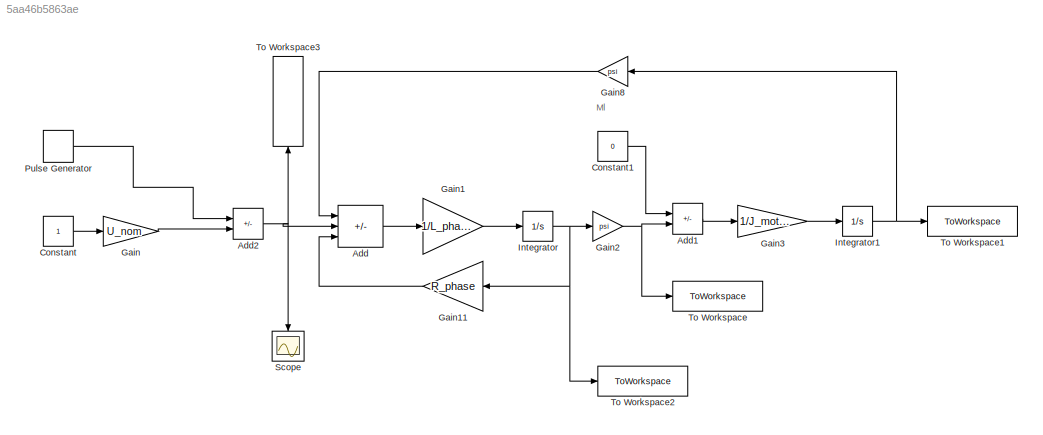
MODEL slx_5aa46b5863ae
KIND model
CONFIG AbsTol = auto
CONFIG EnableMultiTasking = off
CONFIG FixedStep = 1e-4
CONFIG MaxStep = auto
CONFIG MinStep = auto
CONFIG RelTol = 1e-3
CONFIG SampleTimeConstraint = Unconstrained
CONFIG SolverName = ode3
CONFIG StartTime = 0.0
CONFIG StopTime = 10.0
BLOCK [Sum] Add
  IconShape = rectangular
  Inputs = -+-
  Ports = [3, 1]
BLOCK [Sum] Add1
  IconShape = rectangular
  Inputs = -+
  Ports = [2, 1]
BLOCK [Sum] Add2
  IconShape = rectangular
  Inputs = +-
  Ports = [2, 1]
BLOCK [Constant] Constant
BLOCK [Constant] Constant1
  Value = 0
BLOCK [Gain] Gain
  Gain = U_nom
BLOCK [Gain] Gain1
  Gain = 1/L_phase
BLOCK [Gain] Gain11
  Gain = R_phase
  NameLocation = top
BLOCK [Gain] Gain2
  Gain = psi
BLOCK [Gain] Gain3
  Gain = 1/J_motor
BLOCK [Gain] Gain8
  Gain = psi
  NameLocation = top
BLOCK [Integrator] Integrator
  Ports = [1, 1]
BLOCK [Integrator] Integrator1
  Ports = [1, 1]
BLOCK [DiscretePulseGenerator] Pulse Generator
  Amplitude = 2*U_nom
  Ports = [0, 1]
  PulseType = Time based
  PulseWidth = 50
BLOCK [Scope] Scope
  Floating = off
  NameLocation = left
  NumInputPorts = 1
  Ports = [1]
  ScopeSpecificationString = Simulink.scopes.TimeScopeBlockCfg('CurrentConfiguration', extmgr.ConfigurationSet(extmgr.Configuration('Core','General UI',true),extmgr.Configuration('Core','Source UI',true),extmgr.Configuration('Sources','WiredSimulink',true),extmgr.Configuration('Visuals','Time Domain',true,'SerializedDisplays',{struct('MinYLimReal','-60.00000','MaxYLimReal','60.00000','YLabelReal','','MinYLimMag','0.00000','Ma...<+1363ch>
BLOCK [ToWorkspace] To Workspace
  FixptAsFi = on
  MaxDataPoints = inf
  Ports = [1]
  SampleTime = -1
  SaveFormat = Timeseries
  VariableName = motor_torque_leap_load
BLOCK [ToWorkspace] To Workspace1
  FixptAsFi = on
  MaxDataPoints = inf
  Ports = [1]
  SampleTime = -1
  SaveFormat = Timeseries
  VariableName = x3
BLOCK [ToWorkspace] To Workspace2
  FixptAsFi = on
  MaxDataPoints = inf
  Ports = [1]
  SampleTime = -1
  SaveFormat = Timeseries
  VariableName = x2
BLOCK [ToWorkspace] To Workspace3
  FixptAsFi = on
  MaxDataPoints = inf
  NameLocation = right
  Ports = [1]
  SampleTime = -1
  SaveFormat = Timeseries
  VariableName = x1
ANNOTATION (root): Ml
LINE Add1:1 -> Gain3:1
NET Add2:1 -> Add:2, Scope:1, To Workspace3:1
LINE Add:1 -> Gain1:1
LINE Constant1:1 -> Add1:1
LINE Constant:1 -> Gain:1
LINE Gain11:1 -> Add:3
LINE Gain1:1 -> Integrator:1
NET Gain2:1 -> Add1:2, To Workspace:1
LINE Gain3:1 -> Integrator1:1
LINE Gain8:1 -> Add:1
LINE Gain:1 -> Add2:2
NET Integrator1:1 -> Gain8:1, To Workspace1:1
NET Integrator:1 -> Gain11:1, Gain2:1, To Workspace2:1
LINE Pulse Generator:1 -> Add2:1
note: NET lines group one-source signal fan-out (src -> all destinations, sorted); 1:1 wires keep LINE
